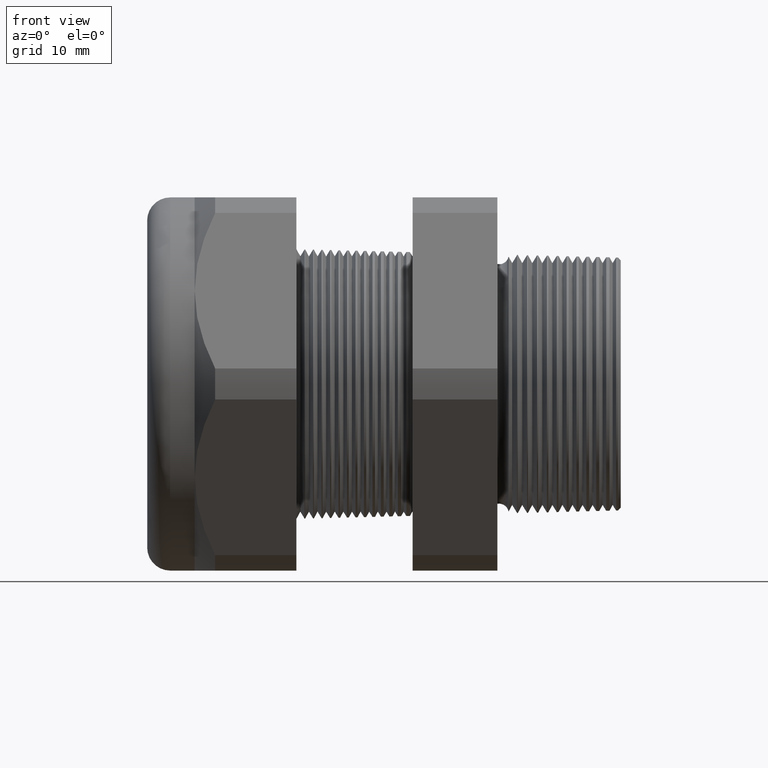
[diagram: clean part render]
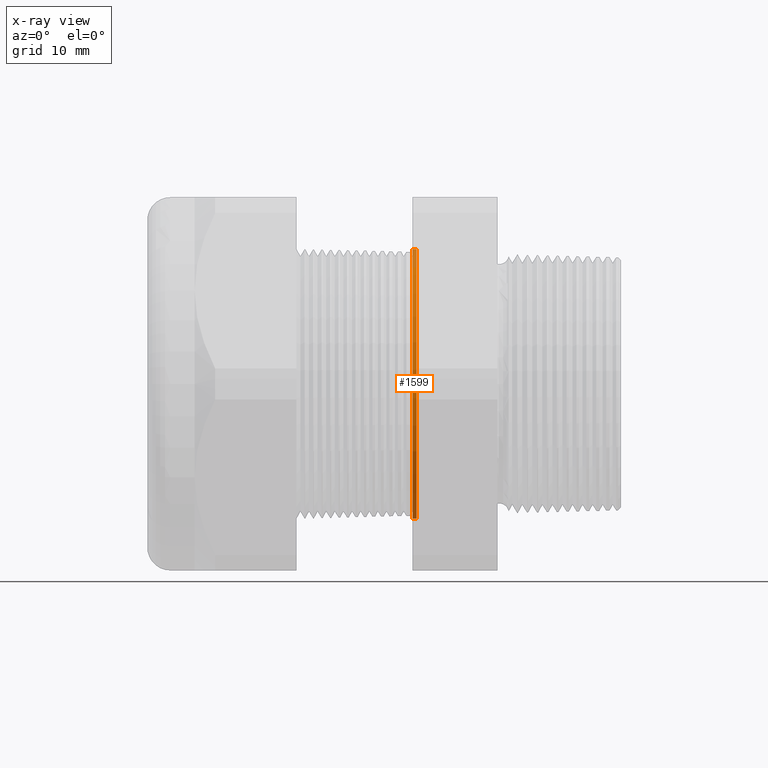
[diagram: x-ray — body ghosted, one internal face saturated and labeled with its STEP entity id]
A machine part, front view, then the same camera in x-ray: the body is ghosted and one INTERNAL B-rep face — a face not visible from any outside direction — is saturated and labeled: STEP entity #1599.
In plain terms, the highlighted conical surface has half-angle 1.5 deg.
Its self-contained STEP definition (entity closure, byte-faithful):
#1599 = ADVANCED_FACE ( 'NONE', ( #4564 ), #4563, .F. ) ;
#1600 = EDGE_LOOP ( 'NONE', ( #1601, #1605, #1646, #1649 ) ) ;
#1601 = ORIENTED_EDGE ( 'NONE', *, *, #1602, .T. ) ;
#1602 = EDGE_CURVE ( 'NONE', #1603, #1604, #4620, .T. ) ;
#1603 = VERTEX_POINT ( 'NONE', #4615 ) ;
#1604 = VERTEX_POINT ( 'NONE', #4614 ) ;
#1605 = ORIENTED_EDGE ( 'NONE', *, *, #1644, .T. ) ;
#1644 = EDGE_CURVE ( 'NONE', #1604, #1645, #4683, .T. ) ;
#1645 = VERTEX_POINT ( 'NONE', #4675 ) ;
#1646 = ORIENTED_EDGE ( 'NONE', *, *, #1647, .T. ) ;
#1647 = EDGE_CURVE ( 'NONE', #1645, #1648, #4674, .T. ) ;
#1648 = VERTEX_POINT ( 'NONE', #4669 ) ;
#1649 = ORIENTED_EDGE ( 'NONE', *, *, #1650, .F. ) ;
#1650 = EDGE_CURVE ( 'NONE', #1603, #1648, #4668, .T. ) ;
#4559 = DIRECTION ( 'NONE',  ( 0.0000000000000000000, 0.0000000000000000000, 1.000000000000000000 ) ) ;
#4560 = DIRECTION ( 'NONE',  ( -1.000000000000000000, 0.0000000000000000000, 0.0000000000000000000 ) ) ;
#4561 = CARTESIAN_POINT ( 'NONE',  ( -0.5914573393463203900, 0.0000000000000000000, 0.0000000000000000000 ) ) ;
#4562 = AXIS2_PLACEMENT_3D ( 'NONE', #4561, #4560, #4559 ) ;
#4563 = CONICAL_SURFACE ( 'NONE', #4562, 0.4692443365923945100, 0.02617993877990797800 ) ;
#4564 = FACE_OUTER_BOUND ( 'NONE', #1600, .T. ) ;
#4614 = CARTESIAN_POINT ( 'NONE',  ( -0.5914573393463203900, 0.0000000000000000000, -0.4692443365923945100 ) ) ;
#4615 = CARTESIAN_POINT ( 'NONE',  ( -0.5914573393463203900, 5.746585748258992000E-017, 0.4692443365923945100 ) ) ;
#4616 = DIRECTION ( 'NONE',  ( 0.0000000000000000000, 0.0000000000000000000, -1.000000000000000000 ) ) ;
#4617 = DIRECTION ( 'NONE',  ( 1.000000000000000000, 0.0000000000000000000, 0.0000000000000000000 ) ) ;
#4618 = CARTESIAN_POINT ( 'NONE',  ( -0.5914573393463203900, 0.0000000000000000000, 0.0000000000000000000 ) ) ;
#4619 = AXIS2_PLACEMENT_3D ( 'NONE', #4618, #4617, #4616 ) ;
#4620 = CIRCLE ( 'NONE', #4619, 0.4692443365923945100 ) ;
#4665 = DIRECTION ( 'NONE',  ( -0.9996573249755573700, 0.0000000000000000000, 0.02617694830786618600 ) ) ;
#4666 = VECTOR ( 'NONE', #4665, 39.37007874015748100 ) ;
#4667 = CARTESIAN_POINT ( 'NONE',  ( -0.5914573393463203900, 0.0000000000000000000, 0.4692443365923945100 ) ) ;
#4668 = LINE ( 'NONE', #4667, #4666 ) ;
#4669 = CARTESIAN_POINT ( 'NONE',  ( -0.6052755905511809600, 0.0000000000000000000, 0.4696061802346682100 ) ) ;
#4670 = DIRECTION ( 'NONE',  ( 0.0000000000000000000, 0.0000000000000000000, 1.000000000000000000 ) ) ;
#4671 = DIRECTION ( 'NONE',  ( -1.000000000000000000, 0.0000000000000000000, 0.0000000000000000000 ) ) ;
#4672 = CARTESIAN_POINT ( 'NONE',  ( -0.6052755905511809600, 0.0000000000000000000, 0.0000000000000000000 ) ) ;
#4673 = AXIS2_PLACEMENT_3D ( 'NONE', #4672, #4671, #4670 ) ;
#4674 = CIRCLE ( 'NONE', #4673, 0.4696061802346682700 ) ;
#4675 = CARTESIAN_POINT ( 'NONE',  ( -0.6052755905511809600, 5.751017054842014700E-017, -0.4696061802346682100 ) ) ;
#4676 = DIRECTION ( 'NONE',  ( -0.9996573249755573700, 3.205751595667405400E-018, -0.02617694830786618600 ) ) ;
#4677 = VECTOR ( 'NONE', #4676, 39.37007874015748100 ) ;
#4678 = CARTESIAN_POINT ( 'NONE',  ( -0.5914573393463203900, 5.746585748258992000E-017, -0.4692443365923945100 ) ) ;
#4683 = LINE ( 'NONE', #4678, #4677 ) ;